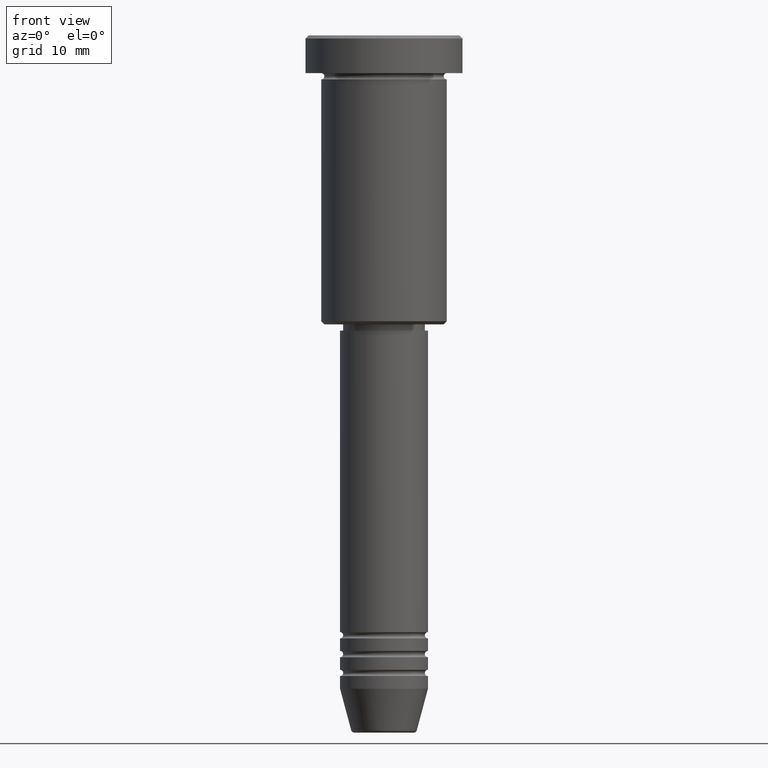
[diagram: clean part render]
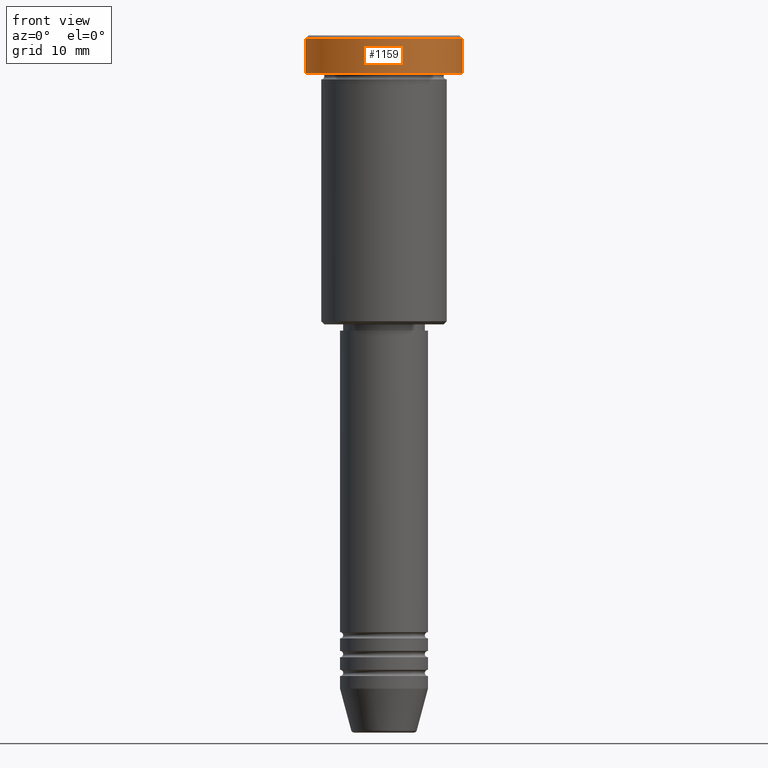
[diagram: same view with one face highlighted and labeled with its STEP entity id]
A machine part, front view. The second image highlights one B-rep face of the part: STEP entity #1159.
In plain terms, the highlighted cylindrical surface (partial cylindrical patch) has radius 12.5 mm, axis along (-0, -0, 1).
Its self-contained STEP definition (entity closure, byte-faithful):
#53 = VECTOR ( 'NONE', #769, 1000.000000000000000 ) ;
#54 = DIRECTION ( 'NONE',  ( -0.000000000000000000, -0.000000000000000000, 1.000000000000000000 ) ) ;
#74 = DIRECTION ( 'NONE',  ( 1.000000000000000000, 0.000000000000000000, 0.000000000000000000 ) ) ;
#136 = VERTEX_POINT ( 'NONE', #1086 ) ;
#154 = DIRECTION ( 'NONE',  ( 1.000000000000000000, 0.000000000000000000, 0.000000000000000000 ) ) ;
#156 = CARTESIAN_POINT ( 'NONE',  ( 12.50000000000000000, 0.000000000000000000, -5.999999999999996447 ) ) ;
#210 = AXIS2_PLACEMENT_3D ( 'NONE', #773, #722, #717 ) ;
#232 = CARTESIAN_POINT ( 'NONE',  ( 12.50000000000000000, 0.000000000000000000, 0.000000000000000000 ) ) ;
#250 = EDGE_CURVE ( 'NONE', #738, #136, #784, .T. ) ;
#265 = CIRCLE ( 'NONE', #863, 12.50000000000000000 ) ;
#377 = EDGE_LOOP ( 'NONE', ( #554, #726, #668, #766 ) ) ;
#385 = LINE ( 'NONE', #574, #53 ) ;
#512 = CARTESIAN_POINT ( 'NONE',  ( 0.000000000000000000, 0.000000000000000000, -5.999999999999996447 ) ) ;
#554 = ORIENTED_EDGE ( 'NONE', *, *, #965, .F. ) ;
#574 = CARTESIAN_POINT ( 'NONE',  ( -12.50000000000000000, 1.530808498934191521E-15, 0.000000000000000000 ) ) ;
#588 = FACE_OUTER_BOUND ( 'NONE', #377, .T. ) ;
#633 = EDGE_CURVE ( 'NONE', #790, #738, #872, .T. ) ;
#635 = VECTOR ( 'NONE', #1142, 1000.000000000000000 ) ;
#640 = VERTEX_POINT ( 'NONE', #969 ) ;
#668 = ORIENTED_EDGE ( 'NONE', *, *, #633, .T. ) ;
#717 = DIRECTION ( 'NONE',  ( 1.000000000000000000, 0.000000000000000000, 0.000000000000000000 ) ) ;
#722 = DIRECTION ( 'NONE',  ( 0.000000000000000000, 0.000000000000000000, -1.000000000000000000 ) ) ;
#726 = ORIENTED_EDGE ( 'NONE', *, *, #1146, .T. ) ;
#738 = VERTEX_POINT ( 'NONE', #1170 ) ;
#766 = ORIENTED_EDGE ( 'NONE', *, *, #250, .T. ) ;
#769 = DIRECTION ( 'NONE',  ( -0.000000000000000000, -0.000000000000000000, 1.000000000000000000 ) ) ;
#773 = CARTESIAN_POINT ( 'NONE',  ( 0.000000000000000000, 0.000000000000000000, -0.5000000000000056621 ) ) ;
#776 = CYLINDRICAL_SURFACE ( 'NONE', #1019, 12.50000000000000000 ) ;
#780 = CARTESIAN_POINT ( 'NONE',  ( 0.000000000000000000, 0.000000000000000000, 0.000000000000000000 ) ) ;
#784 = CIRCLE ( 'NONE', #210, 12.50000000000000000 ) ;
#790 = VERTEX_POINT ( 'NONE', #156 ) ;
#796 = DIRECTION ( 'NONE',  ( -0.000000000000000000, -0.000000000000000000, 1.000000000000000000 ) ) ;
#863 = AXIS2_PLACEMENT_3D ( 'NONE', #512, #796, #74 ) ;
#872 = LINE ( 'NONE', #232, #635 ) ;
#965 = EDGE_CURVE ( 'NONE', #640, #136, #385, .T. ) ;
#969 = CARTESIAN_POINT ( 'NONE',  ( -12.50000000000000000, 1.530808498934191521E-15, -5.999999999999996447 ) ) ;
#1019 = AXIS2_PLACEMENT_3D ( 'NONE', #780, #54, #154 ) ;
#1086 = CARTESIAN_POINT ( 'NONE',  ( -12.50000000000000000, 1.530808498934191521E-15, -0.5000000000000056621 ) ) ;
#1142 = DIRECTION ( 'NONE',  ( -0.000000000000000000, -0.000000000000000000, 1.000000000000000000 ) ) ;
#1146 = EDGE_CURVE ( 'NONE', #640, #790, #265, .T. ) ;
#1159 = ADVANCED_FACE ( 'NONE', ( #588 ), #776, .T. ) ;
#1170 = CARTESIAN_POINT ( 'NONE',  ( 12.50000000000000000, 0.000000000000000000, -0.5000000000000056621 ) ) ;